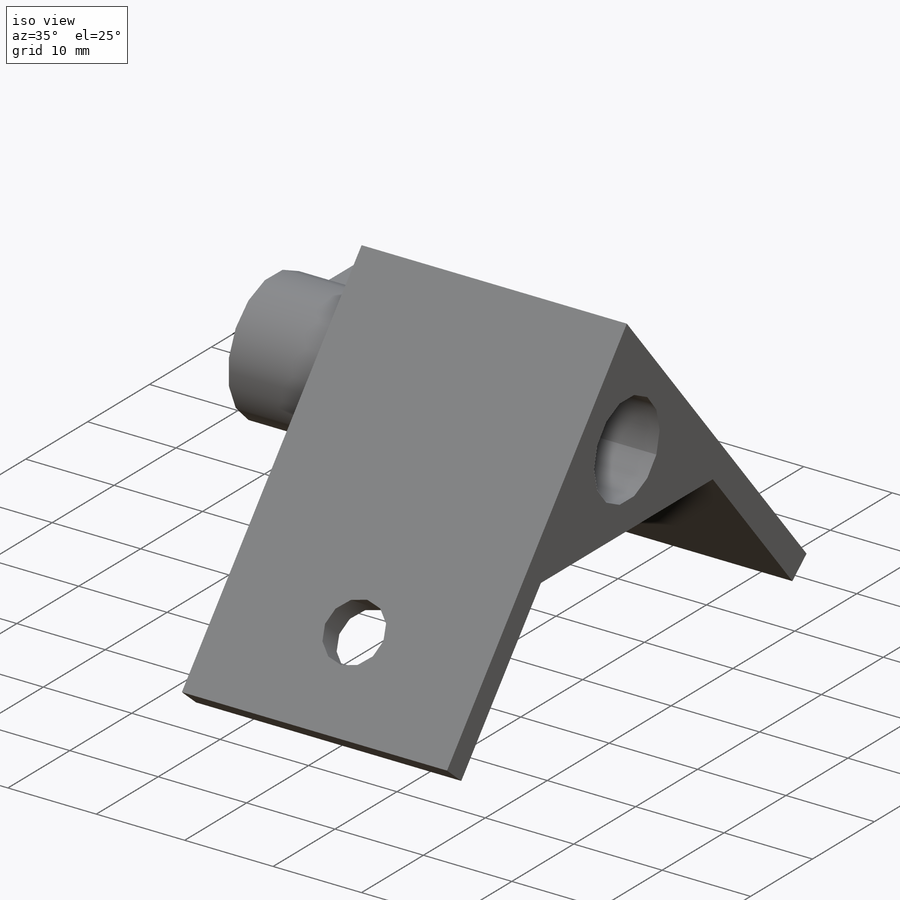
[diagram: iso view]
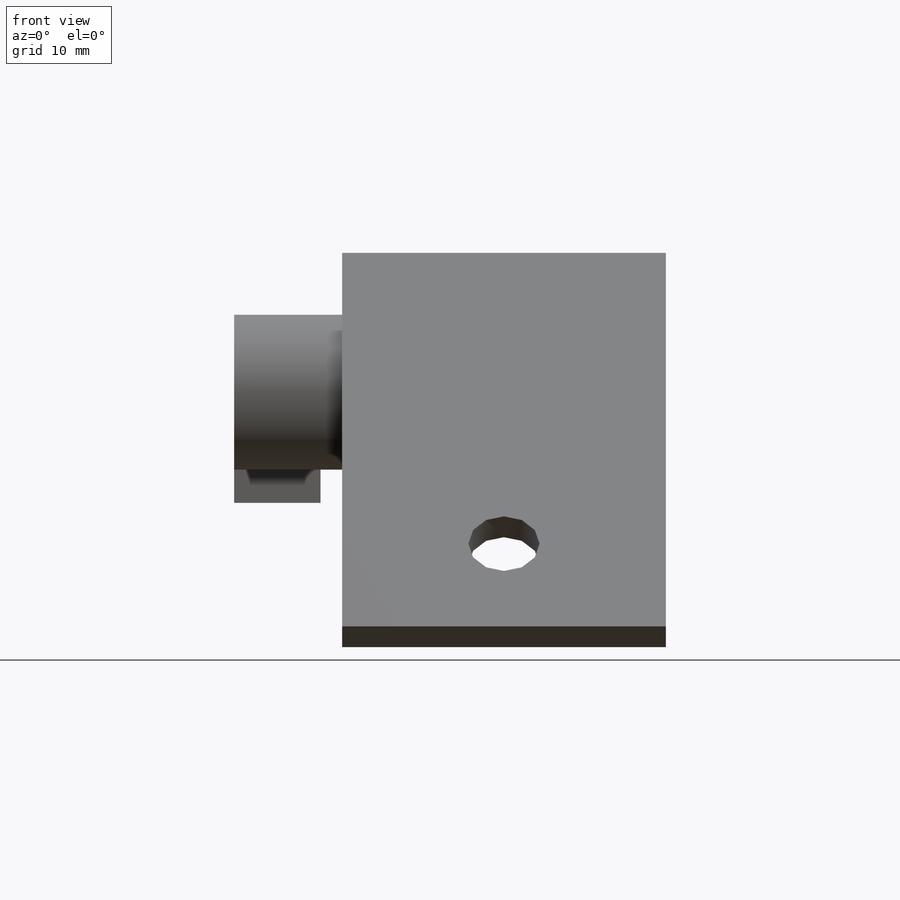
[diagram: front view]
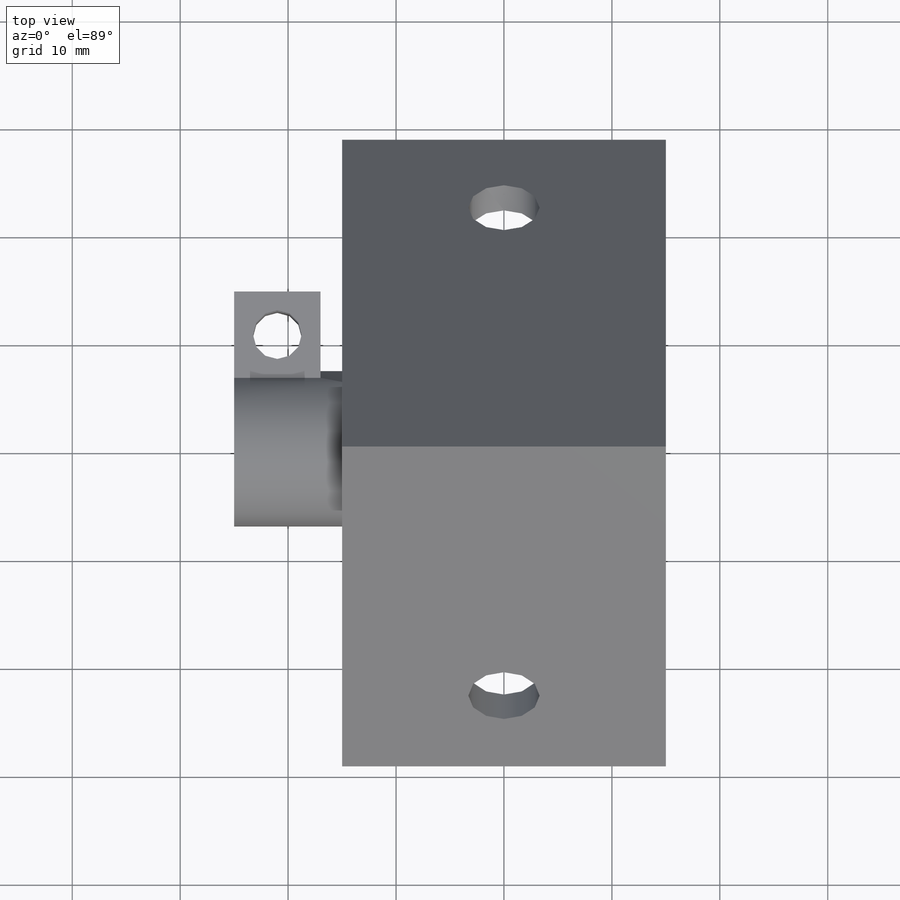
[diagram: top view]
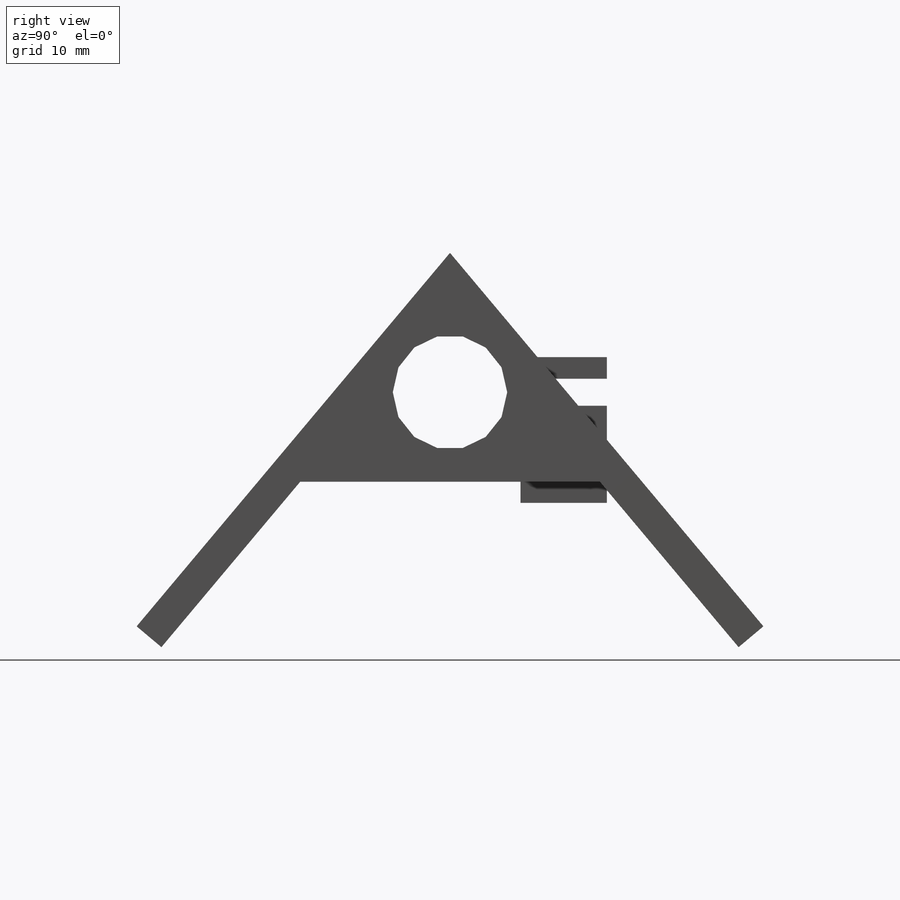
[diagram: right view]
SOLIDWORKS PART (.sldprt)
format: sldprt  version: not decoded by parser v0  size: 262,656 bytes
history: native  units: mm
features: sketch x6, extrude x3, material x1, hole x1, mirror x1, cut_extrude x1 (+13 scaffold rows collapsed)
feature tree (26):
  scaffold x13  (default folders/planes/origin — collapsed)
  material  "PLA Black"
  sketch  "Sketch1"  dims[c1.D1=10.6mm c1.D4=10.5mm c1.D2=~39.117494mm c2.D2=~70.646329deg c3.D2=~47.943751mm c4.D2=40.0deg c4.D3=3.0mm c4.D4=3.0mm c4.D5=3.0mm c4.D6=20.0mm]
  extrude  "Boss-Extrude1"  Depth=30mm
  hole  "M6 Clearance Hole1"  Diameter=6.6mm Depth=25.243687mm
  sketch  "Sketch3"
  sketch  "Sketch4"  dims[hole-wizard template sketch: 60 standard entries collapsed; hole parameters kept: c18.Thru Hole Depth=~25.243687mm]
  mirror  "Mirror1"
  sketch  "Sketch7"  dims[D1=2.0mm D2=2.5mm]
  extrude  "Boss-Extrude3"  Depth=2mm
  sketch  "Sketch5"  dims[D1=2.0mm D2=8.0mm D3=2.5mm D4=2.0mm D5=9.0mm]
  extrude  "Boss-Extrude2"  Depth=8mm
  sketch  "Sketch6"  dims[D1=4.5mm]
  cut_extrude  "Cut-Extrude1"  [1 undecoded]
decode coverage: 9 of 12 modeling features carry decoded parameters
note: ~ marks probable driven/reference dimensions
note: 1 parameter value undecoded
note: suppression state not decoded; provenance and decode notes live in map.json
